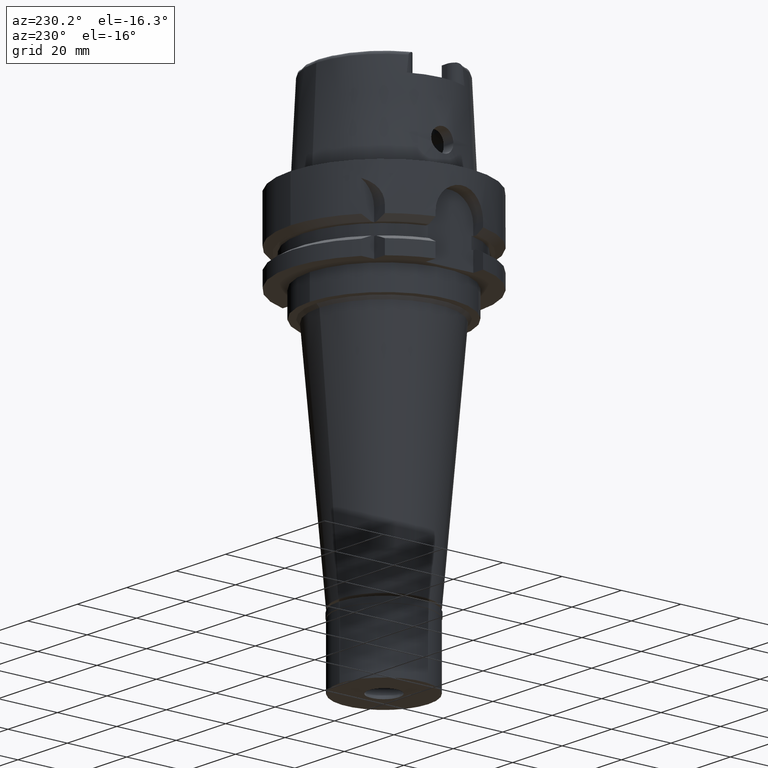
[diagram: clean part render]
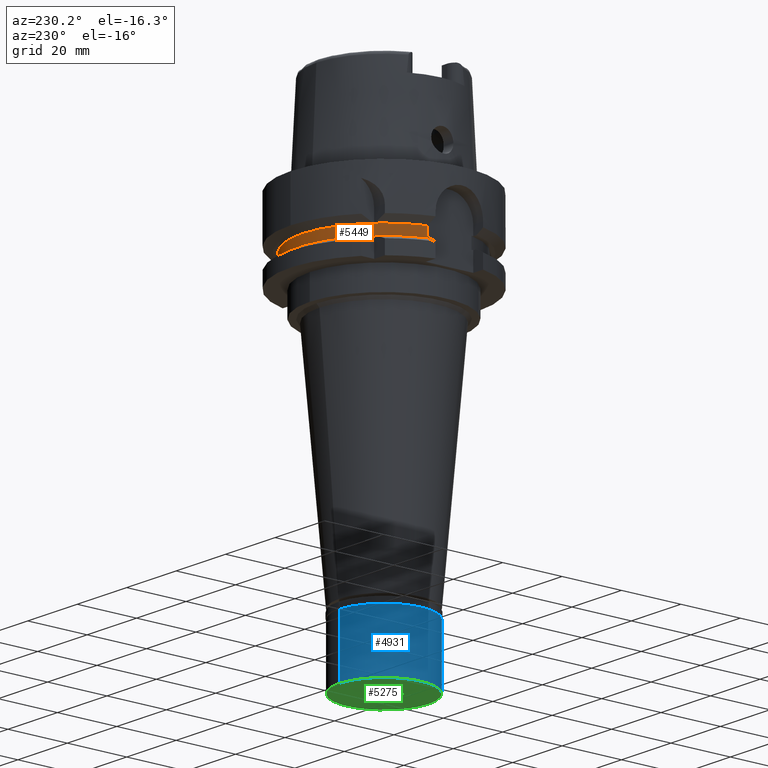
[diagram: same view with three faces highlighted in distinct colors, each labeled with its STEP entity id]
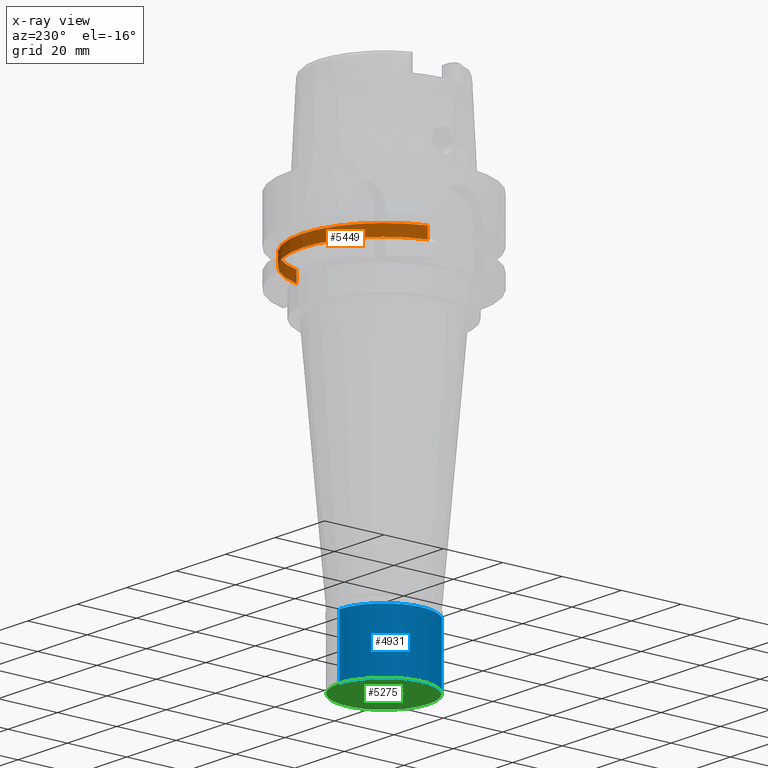
[diagram: x-ray of the same camera — body ghosted, the three highlighted faces saturated]
A machine part, auxiliary view with three faces highlighted in distinct colors.
The next image is the same camera in x-ray (body ghosted, the three faces saturated) — at least one of them is partly hidden behind the body in this view.
Their STEP definitions:

[orange] entity #5449 — the highlighted cylindrical surface (partial cylindrical patch) has radius 27.5 mm, axis along (0, 0, 1).
#31 = DIRECTION ( 'NONE',  ( 0.0000000000000000000, 1.000000000000000000, 0.0000000000000000000 ) ) ;
#77 = CIRCLE ( 'NONE', #1321, 27.50000000000001066 ) ;
#96 = CARTESIAN_POINT ( 'NONE',  ( 0.0000000000000000000, 0.0000000000000000000, -19.87500000000000000 ) ) ;
#407 = CARTESIAN_POINT ( 'NONE',  ( -26.50000000000000000, 7.348469228349999938, -19.87500000000000000 ) ) ;
#466 = CARTESIAN_POINT ( 'NONE',  ( -26.50000000000000000, 7.348469228349999938, -16.12500000000000000 ) ) ;
#526 = CARTESIAN_POINT ( 'NONE',  ( 0.0000000000000000000, 0.0000000000000000000, 0.0000000000000000000 ) ) ;
#603 = ORIENTED_EDGE ( 'NONE', *, *, #5262, .T. ) ;
#694 = VECTOR ( 'NONE', #2550, 1000.000000000000000 ) ;
#734 = VERTEX_POINT ( 'NONE', #4617 ) ;
#777 = DIRECTION ( 'NONE',  ( 0.0000000000000000000, 0.0000000000000000000, -1.000000000000000000 ) ) ;
#786 = LINE ( 'NONE', #2495, #694 ) ;
#808 = DIRECTION ( 'NONE',  ( 0.0000000000000000000, 0.0000000000000000000, -1.000000000000000000 ) ) ;
#1032 = AXIS2_PLACEMENT_3D ( 'NONE', #526, #2206, #31 ) ;
#1321 = AXIS2_PLACEMENT_3D ( 'NONE', #96, #2610, #5176 ) ;
#1609 = EDGE_CURVE ( 'NONE', #734, #3360, #77, .T. ) ;
#1655 = CARTESIAN_POINT ( 'NONE',  ( -26.50000000000000000, 7.348469228349999938, -16.12500000000000000 ) ) ;
#1896 = EDGE_CURVE ( 'NONE', #734, #2915, #786, .T. ) ;
#2027 = EDGE_LOOP ( 'NONE', ( #2362, #603, #3932, #5313 ) ) ;
#2206 = DIRECTION ( 'NONE',  ( 0.0000000000000000000, 0.0000000000000000000, 1.000000000000000000 ) ) ;
#2362 = ORIENTED_EDGE ( 'NONE', *, *, #5409, .F. ) ;
#2460 = AXIS2_PLACEMENT_3D ( 'NONE', #3692, #777, #4131 ) ;
#2495 = CARTESIAN_POINT ( 'NONE',  ( 26.50000000000000000, 7.348469228349999938, -19.87500000000000000 ) ) ;
#2550 = DIRECTION ( 'NONE',  ( 0.0000000000000000000, 0.0000000000000000000, 1.000000000000000000 ) ) ;
#2595 = CYLINDRICAL_SURFACE ( 'NONE', #1032, 27.50000000000000000 ) ;
#2610 = DIRECTION ( 'NONE',  ( 0.0000000000000000000, 0.0000000000000000000, 1.000000000000000000 ) ) ;
#2896 = CIRCLE ( 'NONE', #2460, 27.50000000000000000 ) ;
#2915 = VERTEX_POINT ( 'NONE', #3453 ) ;
#3360 = VERTEX_POINT ( 'NONE', #407 ) ;
#3367 = VERTEX_POINT ( 'NONE', #466 ) ;
#3453 = CARTESIAN_POINT ( 'NONE',  ( 26.50000000000000000, 7.348469228349999938, -16.12500000000000000 ) ) ;
#3659 = VECTOR ( 'NONE', #808, 1000.000000000000000 ) ;
#3692 = CARTESIAN_POINT ( 'NONE',  ( 0.0000000000000000000, 0.0000000000000000000, -16.12500000000000000 ) ) ;
#3802 = FACE_OUTER_BOUND ( 'NONE', #2027, .T. ) ;
#3932 = ORIENTED_EDGE ( 'NONE', *, *, #1896, .F. ) ;
#4131 = DIRECTION ( 'NONE',  ( 0.0000000000000000000, 1.000000000000000000, 0.0000000000000000000 ) ) ;
#4617 = CARTESIAN_POINT ( 'NONE',  ( 26.50000000000000000, 7.348469228349999938, -19.87500000000000000 ) ) ;
#5176 = DIRECTION ( 'NONE',  ( 0.9636363636363595164, 0.2672170628490889155, 0.0000000000000000000 ) ) ;
#5262 = EDGE_CURVE ( 'NONE', #3367, #2915, #2896, .T. ) ;
#5313 = ORIENTED_EDGE ( 'NONE', *, *, #1609, .T. ) ;
#5409 = EDGE_CURVE ( 'NONE', #3367, #3360, #5414, .T. ) ;
#5414 = LINE ( 'NONE', #1655, #3659 ) ;
#5449 = ADVANCED_FACE ( 'NONE', ( #3802 ), #2595, .T. ) ;

[blue] entity #4931 — the highlighted cylindrical surface (partial cylindrical patch) has radius 15 mm, axis along (0, 0, -1).
#33 = CIRCLE ( 'NONE', #3136, 15.00000000000000000 ) ;
#56 = AXIS2_PLACEMENT_3D ( 'NONE', #298, #4470, #325 ) ;
#80 = VERTEX_POINT ( 'NONE', #3070 ) ;
#158 = VECTOR ( 'NONE', #3548, 1000.000000000000000 ) ;
#298 = CARTESIAN_POINT ( 'NONE',  ( 0.0000000000000000000, 0.0000000000000000000, -2.000000000000000000 ) ) ;
#325 = DIRECTION ( 'NONE',  ( 0.0000000000000000000, -1.000000000000000000, 0.0000000000000000000 ) ) ;
#422 = CARTESIAN_POINT ( 'NONE',  ( 0.0000000000000000000, 15.00000000000000000, -2.000000000000000000 ) ) ;
#626 = ORIENTED_EDGE ( 'NONE', *, *, #1166, .T. ) ;
#745 = VERTEX_POINT ( 'NONE', #2466 ) ;
#1166 = EDGE_CURVE ( 'NONE', #2359, #2878, #3327, .T. ) ;
#1400 = ORIENTED_EDGE ( 'NONE', *, *, #3489, .T. ) ;
#1467 = AXIS2_PLACEMENT_3D ( 'NONE', #4641, #3860, #3383 ) ;
#1757 = EDGE_CURVE ( 'NONE', #745, #80, #2274, .T. ) ;
#1859 = ORIENTED_EDGE ( 'NONE', *, *, #5349, .T. ) ;
#2133 = FACE_OUTER_BOUND ( 'NONE', #2930, .T. ) ;
#2274 = LINE ( 'NONE', #3155, #158 ) ;
#2359 = VERTEX_POINT ( 'NONE', #422 ) ;
#2466 = CARTESIAN_POINT ( 'NONE',  ( 0.0000000000000000000, -15.00000000000000000, -2.000000000000000000 ) ) ;
#2637 = CIRCLE ( 'NONE', #56, 15.00000000000000000 ) ;
#2878 = VERTEX_POINT ( 'NONE', #4713 ) ;
#2921 = DIRECTION ( 'NONE',  ( 0.0000000000000000000, 0.0000000000000000000, -1.000000000000000000 ) ) ;
#2930 = EDGE_LOOP ( 'NONE', ( #1400, #3318, #1859, #626 ) ) ;
#3070 = CARTESIAN_POINT ( 'NONE',  ( 0.0000000000000000000, -15.00000000000000000, -22.00000000000000000 ) ) ;
#3136 = AXIS2_PLACEMENT_3D ( 'NONE', #5154, #4179, #4627 ) ;
#3155 = CARTESIAN_POINT ( 'NONE',  ( 0.0000000000000000000, -15.00000000000000000, -2.000000000000000000 ) ) ;
#3318 = ORIENTED_EDGE ( 'NONE', *, *, #1757, .F. ) ;
#3327 = LINE ( 'NONE', #4992, #3629 ) ;
#3383 = DIRECTION ( 'NONE',  ( 0.0000000000000000000, -1.000000000000000000, 0.0000000000000000000 ) ) ;
#3489 = EDGE_CURVE ( 'NONE', #2878, #80, #33, .T. ) ;
#3548 = DIRECTION ( 'NONE',  ( 0.0000000000000000000, 0.0000000000000000000, -1.000000000000000000 ) ) ;
#3629 = VECTOR ( 'NONE', #2921, 1000.000000000000000 ) ;
#3860 = DIRECTION ( 'NONE',  ( 0.0000000000000000000, 0.0000000000000000000, -1.000000000000000000 ) ) ;
#4179 = DIRECTION ( 'NONE',  ( 0.0000000000000000000, 0.0000000000000000000, 1.000000000000000000 ) ) ;
#4470 = DIRECTION ( 'NONE',  ( 0.0000000000000000000, 0.0000000000000000000, -1.000000000000000000 ) ) ;
#4627 = DIRECTION ( 'NONE',  ( 0.0000000000000000000, 1.000000000000000000, 0.0000000000000000000 ) ) ;
#4641 = CARTESIAN_POINT ( 'NONE',  ( 0.0000000000000000000, 0.0000000000000000000, 0.0000000000000000000 ) ) ;
#4713 = CARTESIAN_POINT ( 'NONE',  ( 0.0000000000000000000, 15.00000000000000000, -22.00000000000000000 ) ) ;
#4931 = ADVANCED_FACE ( 'NONE', ( #2133 ), #5113, .T. ) ;
#4992 = CARTESIAN_POINT ( 'NONE',  ( 0.0000000000000000000, 15.00000000000000000, -2.000000000000000000 ) ) ;
#5113 = CYLINDRICAL_SURFACE ( 'NONE', #1467, 15.00000000000000000 ) ;
#5154 = CARTESIAN_POINT ( 'NONE',  ( 0.0000000000000000000, 0.0000000000000000000, -22.00000000000000000 ) ) ;
#5349 = EDGE_CURVE ( 'NONE', #745, #2359, #2637, .T. ) ;

[green] entity #5275 — the highlighted planar face has unit normal (0, 0, -1).
#33 = CIRCLE ( 'NONE', #3136, 15.00000000000000000 ) ;
#80 = VERTEX_POINT ( 'NONE', #3070 ) ;
#269 = FACE_OUTER_BOUND ( 'NONE', #1732, .T. ) ;
#338 = ORIENTED_EDGE ( 'NONE', *, *, #3489, .F. ) ;
#561 = EDGE_CURVE ( 'NONE', #4920, #1331, #5211, .T. ) ;
#749 = FACE_BOUND ( 'NONE', #4432, .T. ) ;
#750 = EDGE_CURVE ( 'NONE', #80, #2878, #989, .T. ) ;
#989 = CIRCLE ( 'NONE', #4054, 15.00000000000000000 ) ;
#1213 = DIRECTION ( 'NONE',  ( 0.0000000000000000000, 0.0000000000000000000, 1.000000000000000000 ) ) ;
#1331 = VERTEX_POINT ( 'NONE', #5214 ) ;
#1539 = DIRECTION ( 'NONE',  ( 0.0000000000000000000, -1.000000000000000000, 0.0000000000000000000 ) ) ;
#1732 = EDGE_LOOP ( 'NONE', ( #338, #2282 ) ) ;
#1794 = ORIENTED_EDGE ( 'NONE', *, *, #561, .F. ) ;
#2282 = ORIENTED_EDGE ( 'NONE', *, *, #750, .F. ) ;
#2285 = CIRCLE ( 'NONE', #4008, 5.100000000001000622 ) ;
#2487 = DIRECTION ( 'NONE',  ( 0.0000000000000000000, 0.0000000000000000000, -1.000000000000000000 ) ) ;
#2737 = DIRECTION ( 'NONE',  ( 0.0000000000000000000, -1.000000000000000000, 0.0000000000000000000 ) ) ;
#2810 = CARTESIAN_POINT ( 'NONE',  ( 0.0000000000000000000, 0.0000000000000000000, -22.00000000000000000 ) ) ;
#2845 = DIRECTION ( 'NONE',  ( 0.0000000000000000000, 1.000000000000000000, 0.0000000000000000000 ) ) ;
#2878 = VERTEX_POINT ( 'NONE', #4713 ) ;
#2981 = AXIS2_PLACEMENT_3D ( 'NONE', #5359, #4964, #1539 ) ;
#3070 = CARTESIAN_POINT ( 'NONE',  ( 0.0000000000000000000, -15.00000000000000000, -22.00000000000000000 ) ) ;
#3136 = AXIS2_PLACEMENT_3D ( 'NONE', #5154, #4179, #4627 ) ;
#3489 = EDGE_CURVE ( 'NONE', #2878, #80, #33, .T. ) ;
#3572 = DIRECTION ( 'NONE',  ( 0.0000000000000000000, 0.0000000000000000000, -1.000000000000000000 ) ) ;
#3699 = CARTESIAN_POINT ( 'NONE',  ( 0.0000000000000000000, 0.0000000000000000000, -22.00000000000000000 ) ) ;
#3731 = ORIENTED_EDGE ( 'NONE', *, *, #5340, .F. ) ;
#4008 = AXIS2_PLACEMENT_3D ( 'NONE', #2810, #2487, #2845 ) ;
#4054 = AXIS2_PLACEMENT_3D ( 'NONE', #3699, #1213, #5054 ) ;
#4056 = CARTESIAN_POINT ( 'NONE',  ( 0.0000000000000000000, 0.0000000000000000000, -22.00000000000000000 ) ) ;
#4158 = PLANE ( 'NONE',  #2981 ) ;
#4179 = DIRECTION ( 'NONE',  ( 0.0000000000000000000, 0.0000000000000000000, 1.000000000000000000 ) ) ;
#4194 = CARTESIAN_POINT ( 'NONE',  ( 0.0000000000000000000, -5.100000000001000622, -22.00000000000000000 ) ) ;
#4432 = EDGE_LOOP ( 'NONE', ( #3731, #1794 ) ) ;
#4627 = DIRECTION ( 'NONE',  ( 0.0000000000000000000, 1.000000000000000000, 0.0000000000000000000 ) ) ;
#4713 = CARTESIAN_POINT ( 'NONE',  ( 0.0000000000000000000, 15.00000000000000000, -22.00000000000000000 ) ) ;
#4920 = VERTEX_POINT ( 'NONE', #4194 ) ;
#4964 = DIRECTION ( 'NONE',  ( 0.0000000000000000000, 0.0000000000000000000, -1.000000000000000000 ) ) ;
#5054 = DIRECTION ( 'NONE',  ( 0.0000000000000000000, -1.000000000000000000, 0.0000000000000000000 ) ) ;
#5154 = CARTESIAN_POINT ( 'NONE',  ( 0.0000000000000000000, 0.0000000000000000000, -22.00000000000000000 ) ) ;
#5206 = AXIS2_PLACEMENT_3D ( 'NONE', #4056, #3572, #2737 ) ;
#5211 = CIRCLE ( 'NONE', #5206, 5.100000000001000622 ) ;
#5214 = CARTESIAN_POINT ( 'NONE',  ( 0.0000000000000000000, 5.100000000001000622, -22.00000000000000000 ) ) ;
#5275 = ADVANCED_FACE ( 'NONE', ( #269, #749 ), #4158, .T. ) ;
#5340 = EDGE_CURVE ( 'NONE', #1331, #4920, #2285, .T. ) ;
#5359 = CARTESIAN_POINT ( 'NONE',  ( 0.0000000000000000000, 0.0000000000000000000, -22.00000000000000000 ) ) ;